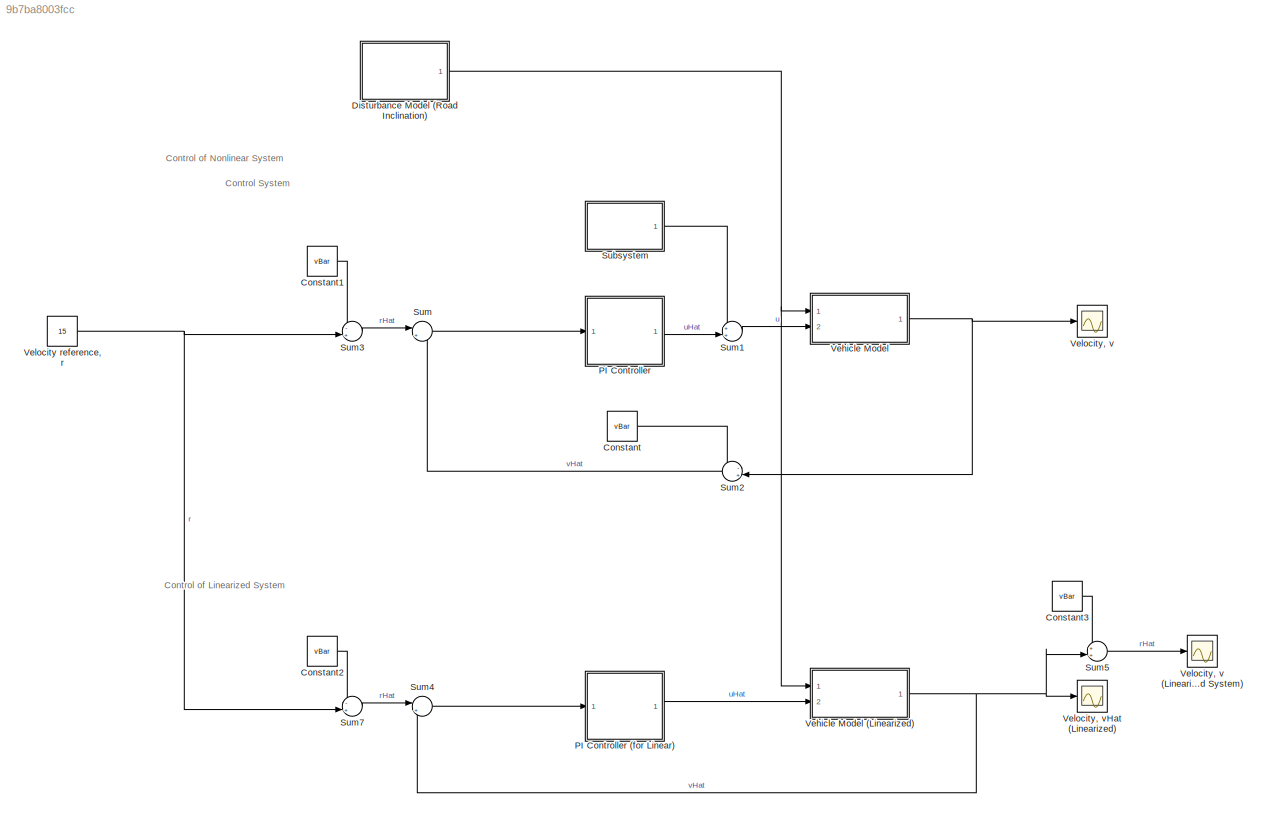
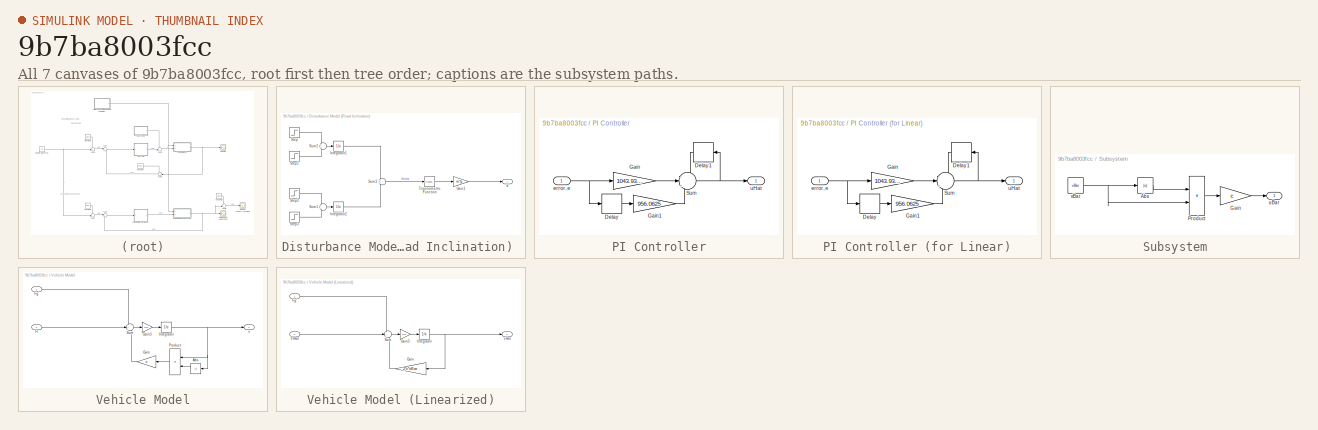
[diagram: thumbnail index - all 7 canvases of the model, root first then tree order]
MODEL slx_9b7ba8003fcc
KIND model
CONFIG AbsTol = auto
CONFIG EnableMultiTasking = off
CONFIG FixedStep = 0.1406
CONFIG MaxStep = 0.1
CONFIG MinStep = auto
CONFIG RelTol = 1e-3
CONFIG SampleTimeConstraint = Unconstrained
CONFIG Solver = FixedStepAuto
CONFIG SolverName = FixedStepAuto
CONFIG StartTime = 0.0
CONFIG StopTime = 20
WORKSPACE source: external: MATLAB File  (data not in archive)
BLOCK [Constant] Constant
  Value = vBar
BLOCK [Constant] Constant1
  Value = vBar
BLOCK [Constant] Constant2
  Value = vBar
BLOCK [Constant] Constant3
  Value = vBar
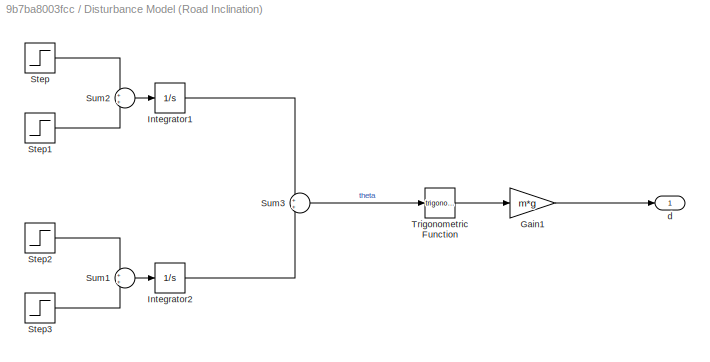
BLOCK [SubSystem] Disturbance Model (Road Inclination) 
  Ports = [0, 1]
  RequestExecContextInheritance = off
BLOCK [Gain] Disturbance Model (Road Inclination) /Gain1
  Gain = m*g
  OutDataTypeStr = Inherit: Inherit via internal rule
  ParamDataTypeStr = Inherit: Inherit via internal rule
  SaturateOnIntegerOverflow = off
BLOCK [Integrator] Disturbance Model (Road Inclination) /Integrator1
  Ports = [1, 1]
BLOCK [Integrator] Disturbance Model (Road Inclination) /Integrator2
  Ports = [1, 1]
BLOCK [Step] Disturbance Model (Road Inclination) /Step
  After = 0.01
  SampleTime = 0
  Time = 50
BLOCK [Step] Disturbance Model (Road Inclination) /Step1
  After = -0.01
  SampleTime = 0
  Time = 60
BLOCK [Step] Disturbance Model (Road Inclination) /Step2
  After = 0.1
  SampleTime = 0
  Time = 100
BLOCK [Step] Disturbance Model (Road Inclination) /Step3
  After = -0.1
  SampleTime = 0
  Time = 110
BLOCK [Sum] Disturbance Model (Road Inclination) /Sum1
  IconShape = round
  InputSameDT = off
  OutDataTypeStr = Inherit: Inherit via internal rule
  Ports = [2, 1]
  SaturateOnIntegerOverflow = off
BLOCK [Sum] Disturbance Model (Road Inclination) /Sum2
  IconShape = round
  InputSameDT = off
  OutDataTypeStr = Inherit: Inherit via internal rule
  Ports = [2, 1]
  SaturateOnIntegerOverflow = off
BLOCK [Sum] Disturbance Model (Road Inclination) /Sum3
  IconShape = round
  InputSameDT = off
  OutDataTypeStr = Inherit: Inherit via internal rule
  Ports = [2, 1]
  SaturateOnIntegerOverflow = off
BLOCK [Trigonometry] Disturbance Model (Road Inclination) /Trigonometric Function
  Ports = [1, 1]
BLOCK [Outport] Disturbance Model (Road Inclination) /d
  IconDisplay = Port number
  VectorParamsAs1DForOutWhenUnconnected = off
BLOCK [SubSystem] PI Controller
  Ports = [1, 1]
  RequestExecContextInheritance = off
BLOCK [SubSystem] PI Controller (for Linear)
  Ports = [1, 1]
  RequestExecContextInheritance = off
BLOCK [Delay] PI Controller (for Linear)/Delay
  DelayLength = 1
  InputPortMap = u0
  Ports = [1, 1]
BLOCK [Delay] PI Controller (for Linear)/Delay1
  DelayLength = 1
  InputPortMap = u0
  Ports = [1, 1]
BLOCK [Gain] PI Controller (for Linear)/Gain
  Gain = 1043.9375
  OutDataTypeStr = Inherit: Inherit via internal rule
  ParamDataTypeStr = Inherit: Inherit via internal rule
  SaturateOnIntegerOverflow = off
BLOCK [Gain] PI Controller (for Linear)/Gain1
  Gain = 956.0625
  OutDataTypeStr = Inherit: Inherit via internal rule
  ParamDataTypeStr = Inherit: Inherit via internal rule
  SaturateOnIntegerOverflow = off
BLOCK [Sum] PI Controller (for Linear)/Sum
  IconShape = round
  InputSameDT = off
  Inputs = -|+|-
  OutDataTypeStr = Inherit: Inherit via internal rule
  Ports = [3, 1]
  SaturateOnIntegerOverflow = off
BLOCK [Inport] PI Controller (for Linear)/error, e
  IconDisplay = Port number
BLOCK [Outport] PI Controller (for Linear)/uHat
  IconDisplay = Port number
  VectorParamsAs1DForOutWhenUnconnected = off
BLOCK [Delay] PI Controller/Delay
  DelayLength = 1
  InputPortMap = u0
  Ports = [1, 1]
BLOCK [Delay] PI Controller/Delay1
  DelayLength = 1
  InputPortMap = u0
  Ports = [1, 1]
BLOCK [Gain] PI Controller/Gain
  Gain = 1043.9375
  OutDataTypeStr = Inherit: Inherit via internal rule
  ParamDataTypeStr = Inherit: Inherit via internal rule
  SaturateOnIntegerOverflow = off
BLOCK [Gain] PI Controller/Gain1
  Gain = 956.0625
  OutDataTypeStr = Inherit: Inherit via internal rule
  ParamDataTypeStr = Inherit: Inherit via internal rule
  SaturateOnIntegerOverflow = off
BLOCK [Sum] PI Controller/Sum
  IconShape = round
  InputSameDT = off
  Inputs = -|+|-
  OutDataTypeStr = Inherit: Inherit via internal rule
  Ports = [3, 1]
  SaturateOnIntegerOverflow = off
BLOCK [Inport] PI Controller/error, e
  IconDisplay = Port number
BLOCK [Outport] PI Controller/uHat
  IconDisplay = Port number
  VectorParamsAs1DForOutWhenUnconnected = off
BLOCK [SubSystem] Subsystem
  Ports = [0, 1]
  RequestExecContextInheritance = off
BLOCK [Abs] Subsystem/Abs
  SaturateOnIntegerOverflow = off
BLOCK [Gain] Subsystem/Gain
  Gain = c
  OutDataTypeStr = Inherit: Inherit via internal rule
  ParamDataTypeStr = Inherit: Inherit via internal rule
  SaturateOnIntegerOverflow = off
BLOCK [Product] Subsystem/Product
  InputSameDT = off
  OutDataTypeStr = Inherit: Inherit via internal rule
  Ports = [2, 1]
  RndMeth = Floor
  SaturateOnIntegerOverflow = off
BLOCK [Outport] Subsystem/uBar
  IconDisplay = Port number
  VectorParamsAs1DForOutWhenUnconnected = off
BLOCK [Constant] Subsystem/vBar
  Value = vBar
BLOCK [Sum] Sum
  IconShape = round
  InputSameDT = off
  Inputs = |+-
  OutDataTypeStr = Inherit: Inherit via internal rule
  Ports = [2, 1]
  SaturateOnIntegerOverflow = off
BLOCK [Sum] Sum1
  IconShape = round
  InputSameDT = off
  Inputs = ++|
  OutDataTypeStr = Inherit: Inherit via internal rule
  Ports = [2, 1]
  SaturateOnIntegerOverflow = off
BLOCK [Sum] Sum2
  IconShape = round
  InputSameDT = off
  Inputs = -+|
  OutDataTypeStr = Inherit: Inherit via internal rule
  Ports = [2, 1]
  SaturateOnIntegerOverflow = off
BLOCK [Sum] Sum3
  IconShape = round
  InputSameDT = off
  Inputs = -+|
  OutDataTypeStr = Inherit: Inherit via internal rule
  Ports = [2, 1]
  SaturateOnIntegerOverflow = off
BLOCK [Sum] Sum4
  IconShape = round
  InputSameDT = off
  Inputs = |+-
  OutDataTypeStr = Inherit: Inherit via internal rule
  Ports = [2, 1]
  SaturateOnIntegerOverflow = off
BLOCK [Sum] Sum5
  IconShape = round
  InputSameDT = off
  Inputs = ++|
  OutDataTypeStr = Inherit: Inherit via internal rule
  Ports = [2, 1]
  SaturateOnIntegerOverflow = off
BLOCK [Sum] Sum7
  IconShape = round
  InputSameDT = off
  Inputs = -+|
  OutDataTypeStr = Inherit: Inherit via internal rule
  Ports = [2, 1]
  SaturateOnIntegerOverflow = off
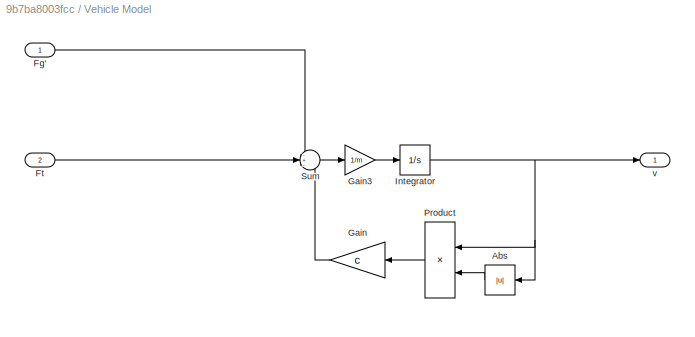
BLOCK [SubSystem] Vehicle Model
  Ports = [2, 1]
  RequestExecContextInheritance = off
BLOCK [SubSystem] Vehicle Model (Linearized)
  Ports = [2, 1]
  RequestExecContextInheritance = off
BLOCK [Inport] Vehicle Model (Linearized)/Fg'
  IconDisplay = Port number
BLOCK [Inport] Vehicle Model (Linearized)/FtHat
  IconDisplay = Port number
  Port = 2
BLOCK [Gain] Vehicle Model (Linearized)/Gain
  Gain = 2*c*vBar
  OutDataTypeStr = Inherit: Inherit via internal rule
  ParamDataTypeStr = Inherit: Inherit via internal rule
  SaturateOnIntegerOverflow = off
BLOCK [Gain] Vehicle Model (Linearized)/Gain3
  Gain = 1/m
  OutDataTypeStr = Inherit: Inherit via internal rule
  ParamDataTypeStr = Inherit: Inherit via internal rule
  SaturateOnIntegerOverflow = off
BLOCK [Integrator] Vehicle Model (Linearized)/Integrator
  Ports = [1, 1]
BLOCK [Sum] Vehicle Model (Linearized)/Sum
  IconShape = round
  InputSameDT = off
  Inputs = -+-
  OutDataTypeStr = Inherit: Inherit via internal rule
  Ports = [3, 1]
  SaturateOnIntegerOverflow = off
BLOCK [Outport] Vehicle Model (Linearized)/vHat
  IconDisplay = Port number
  VectorParamsAs1DForOutWhenUnconnected = off
BLOCK [Abs] Vehicle Model/Abs
  SaturateOnIntegerOverflow = off
BLOCK [Inport] Vehicle Model/Fg'
  IconDisplay = Port number
BLOCK [Inport] Vehicle Model/Ft
  IconDisplay = Port number
  Port = 2
BLOCK [Gain] Vehicle Model/Gain
  Gain = c
  OutDataTypeStr = Inherit: Inherit via internal rule
  ParamDataTypeStr = Inherit: Inherit via internal rule
  SaturateOnIntegerOverflow = off
BLOCK [Gain] Vehicle Model/Gain3
  Gain = 1/m
  OutDataTypeStr = Inherit: Inherit via internal rule
  ParamDataTypeStr = Inherit: Inherit via internal rule
  SaturateOnIntegerOverflow = off
BLOCK [Integrator] Vehicle Model/Integrator
  InitialCondition = vBar
  Ports = [1, 1]
BLOCK [Product] Vehicle Model/Product
  InputSameDT = off
  OutDataTypeStr = Inherit: Inherit via internal rule
  Ports = [2, 1]
  RndMeth = Floor
  SaturateOnIntegerOverflow = off
BLOCK [Sum] Vehicle Model/Sum
  IconShape = round
  InputSameDT = off
  Inputs = -+-
  OutDataTypeStr = Inherit: Inherit via internal rule
  Ports = [3, 1]
  SaturateOnIntegerOverflow = off
BLOCK [Outport] Vehicle Model/v
  IconDisplay = Port number
  VectorParamsAs1DForOutWhenUnconnected = off
BLOCK [Constant] Velocity reference, r
  Value = 15
BLOCK [Scope] Velocity, v
  Floating = off
  NumInputPorts = 1
  Ports = [1]
  ScopeSpecificationString = Simulink.scopes.TimeScopeBlockCfg('CurrentConfiguration', extmgr.ConfigurationSet(extmgr.Configuration('Core','General UI',true),extmgr.Configuration('Core','Source UI',true),extmgr.Configuration('Sources','WiredSimulink',true),extmgr.Configuration('Visuals','Time Domain',true,'SerializedDisplays',{struct('MinYLimReal','-147387.58539','MaxYLimReal','134778.72003','YLabelReal','','MinYLimMag','    ...<+1475ch>
BLOCK [Scope] Velocity, v (Linearized System)
  Floating = off
  NumInputPorts = 1
  Ports = [1]
  ScopeSpecificationString = Simulink.scopes.TimeScopeBlockCfg('CurrentConfiguration', extmgr.ConfigurationSet(extmgr.Configuration('Core','General UI',true),extmgr.Configuration('Core','Source UI',true),extmgr.Configuration('Sources','WiredSimulink',true,'DataLoggingVariableName','ScopeData1'),extmgr.Configuration('Visuals','Time Domain',true,'SerializedDisplays',{struct('MinYLimReal','-2318.80056','MaxYLimReal','2102.35545'...<+1414ch>
BLOCK [Scope] Velocity, vHat (Linearized)
  Floating = off
  NumInputPorts = 1
  Ports = [1]
  ScopeSpecificationString = Simulink.scopes.TimeScopeBlockCfg('CurrentConfiguration', extmgr.ConfigurationSet(extmgr.Configuration('Core','General UI',true),extmgr.Configuration('Core','Source UI',true),extmgr.Configuration('Sources','WiredSimulink',true,'DataLoggingVariableName','ScopeData1'),extmgr.Configuration('Visuals','Time Domain',true,'SerializedDisplays',{struct('MinYLimReal','-2328.80056','MaxYLimReal','2092.35545'...<+1416ch>
ANNOTATION (root): Control System
ANNOTATION (root): Control of Linearized System
ANNOTATION (root): Control of Nonlinear System
LINE Constant1:1 -> Sum3:1
LINE Constant2:1 -> Sum7:1
LINE Constant3:1 -> Sum5:1
LINE Constant:1 -> Sum2:1
LINE Disturbance Model (Road Inclination) /Gain1:1 -> Disturbance Model (Road Inclination) /d:1
LINE Disturbance Model (Road Inclination) /Integrator1:1 -> Disturbance Model (Road Inclination) /Sum3:1
LINE Disturbance Model (Road Inclination) /Integrator2:1 -> Disturbance Model (Road Inclination) /Sum3:2
LINE Disturbance Model (Road Inclination) /Step1:1 -> Disturbance Model (Road Inclination) /Sum2:2
LINE Disturbance Model (Road Inclination) /Step2:1 -> Disturbance Model (Road Inclination) /Sum1:1
LINE Disturbance Model (Road Inclination) /Step3:1 -> Disturbance Model (Road Inclination) /Sum1:2
LINE Disturbance Model (Road Inclination) /Step:1 -> Disturbance Model (Road Inclination) /Sum2:1
LINE Disturbance Model (Road Inclination) /Sum1:1 -> Disturbance Model (Road Inclination) /Integrator2:1
LINE Disturbance Model (Road Inclination) /Sum2:1 -> Disturbance Model (Road Inclination) /Integrator1:1
LINE Disturbance Model (Road Inclination) /Sum3:1 -> Disturbance Model (Road Inclination) /Trigonometric Function:1
LINE Disturbance Model (Road Inclination) /Trigonometric Function:1 -> Disturbance Model (Road Inclination) /Gain1:1
NET Disturbance Model (Road Inclination) :1 -> Vehicle Model (Linearized):1, Vehicle Model:1
LINE PI Controller (for Linear)/Delay1:1 -> PI Controller (for Linear)/Sum:1
LINE PI Controller (for Linear)/Delay:1 -> PI Controller (for Linear)/Gain1:1
LINE PI Controller (for Linear)/Gain1:1 -> PI Controller (for Linear)/Sum:3
LINE PI Controller (for Linear)/Gain:1 -> PI Controller (for Linear)/Sum:2
NET PI Controller (for Linear)/Sum:1 -> PI Controller (for Linear)/Delay1:1, PI Controller (for Linear)/uHat:1
NET PI Controller (for Linear)/error, e:1 -> PI Controller (for Linear)/Delay:1, PI Controller (for Linear)/Gain:1
LINE PI Controller (for Linear):1 -> Vehicle Model (Linearized):2
LINE PI Controller/Delay1:1 -> PI Controller/Sum:1
LINE PI Controller/Delay:1 -> PI Controller/Gain1:1
LINE PI Controller/Gain1:1 -> PI Controller/Sum:3
LINE PI Controller/Gain:1 -> PI Controller/Sum:2
NET PI Controller/Sum:1 -> PI Controller/Delay1:1, PI Controller/uHat:1
NET PI Controller/error, e:1 -> PI Controller/Delay:1, PI Controller/Gain:1
LINE PI Controller:1 -> Sum1:2
LINE Subsystem/Abs:1 -> Subsystem/Product:1
LINE Subsystem/Gain:1 -> Subsystem/uBar:1
LINE Subsystem/Product:1 -> Subsystem/Gain:1
NET Subsystem/vBar:1 -> Subsystem/Abs:1, Subsystem/Product:2
LINE Subsystem:1 -> Sum1:1
LINE Sum1:1 -> Vehicle Model:2
LINE Sum2:1 -> Sum:2
LINE Sum3:1 -> Sum:1
LINE Sum4:1 -> PI Controller (for Linear):1
LINE Sum5:1 -> Velocity, v (Linearized System):1
LINE Sum7:1 -> Sum4:1
LINE Sum:1 -> PI Controller:1
LINE Vehicle Model (Linearized)/Fg':1 -> Vehicle Model (Linearized)/Sum:1
LINE Vehicle Model (Linearized)/FtHat:1 -> Vehicle Model (Linearized)/Sum:2
LINE Vehicle Model (Linearized)/Gain3:1 -> Vehicle Model (Linearized)/Integrator:1
LINE Vehicle Model (Linearized)/Gain:1 -> Vehicle Model (Linearized)/Sum:3
NET Vehicle Model (Linearized)/Integrator:1 -> Vehicle Model (Linearized)/Gain:1, Vehicle Model (Linearized)/vHat:1
LINE Vehicle Model (Linearized)/Sum:1 -> Vehicle Model (Linearized)/Gain3:1
NET Vehicle Model (Linearized):1 -> Sum4:2, Sum5:2, Velocity, vHat (Linearized):1
LINE Vehicle Model/Abs:1 -> Vehicle Model/Product:2
LINE Vehicle Model/Fg':1 -> Vehicle Model/Sum:1
LINE Vehicle Model/Ft:1 -> Vehicle Model/Sum:2
LINE Vehicle Model/Gain3:1 -> Vehicle Model/Integrator:1
LINE Vehicle Model/Gain:1 -> Vehicle Model/Sum:3
NET Vehicle Model/Integrator:1 -> Vehicle Model/Abs:1, Vehicle Model/Product:1, Vehicle Model/v:1
LINE Vehicle Model/Product:1 -> Vehicle Model/Gain:1
LINE Vehicle Model/Sum:1 -> Vehicle Model/Gain3:1
NET Vehicle Model:1 -> Sum2:2, Velocity, v:1
NET Velocity reference, r:1 -> Sum3:2, Sum7:2
note: NET lines group one-source signal fan-out (src -> all destinations, sorted); 1:1 wires keep LINE
